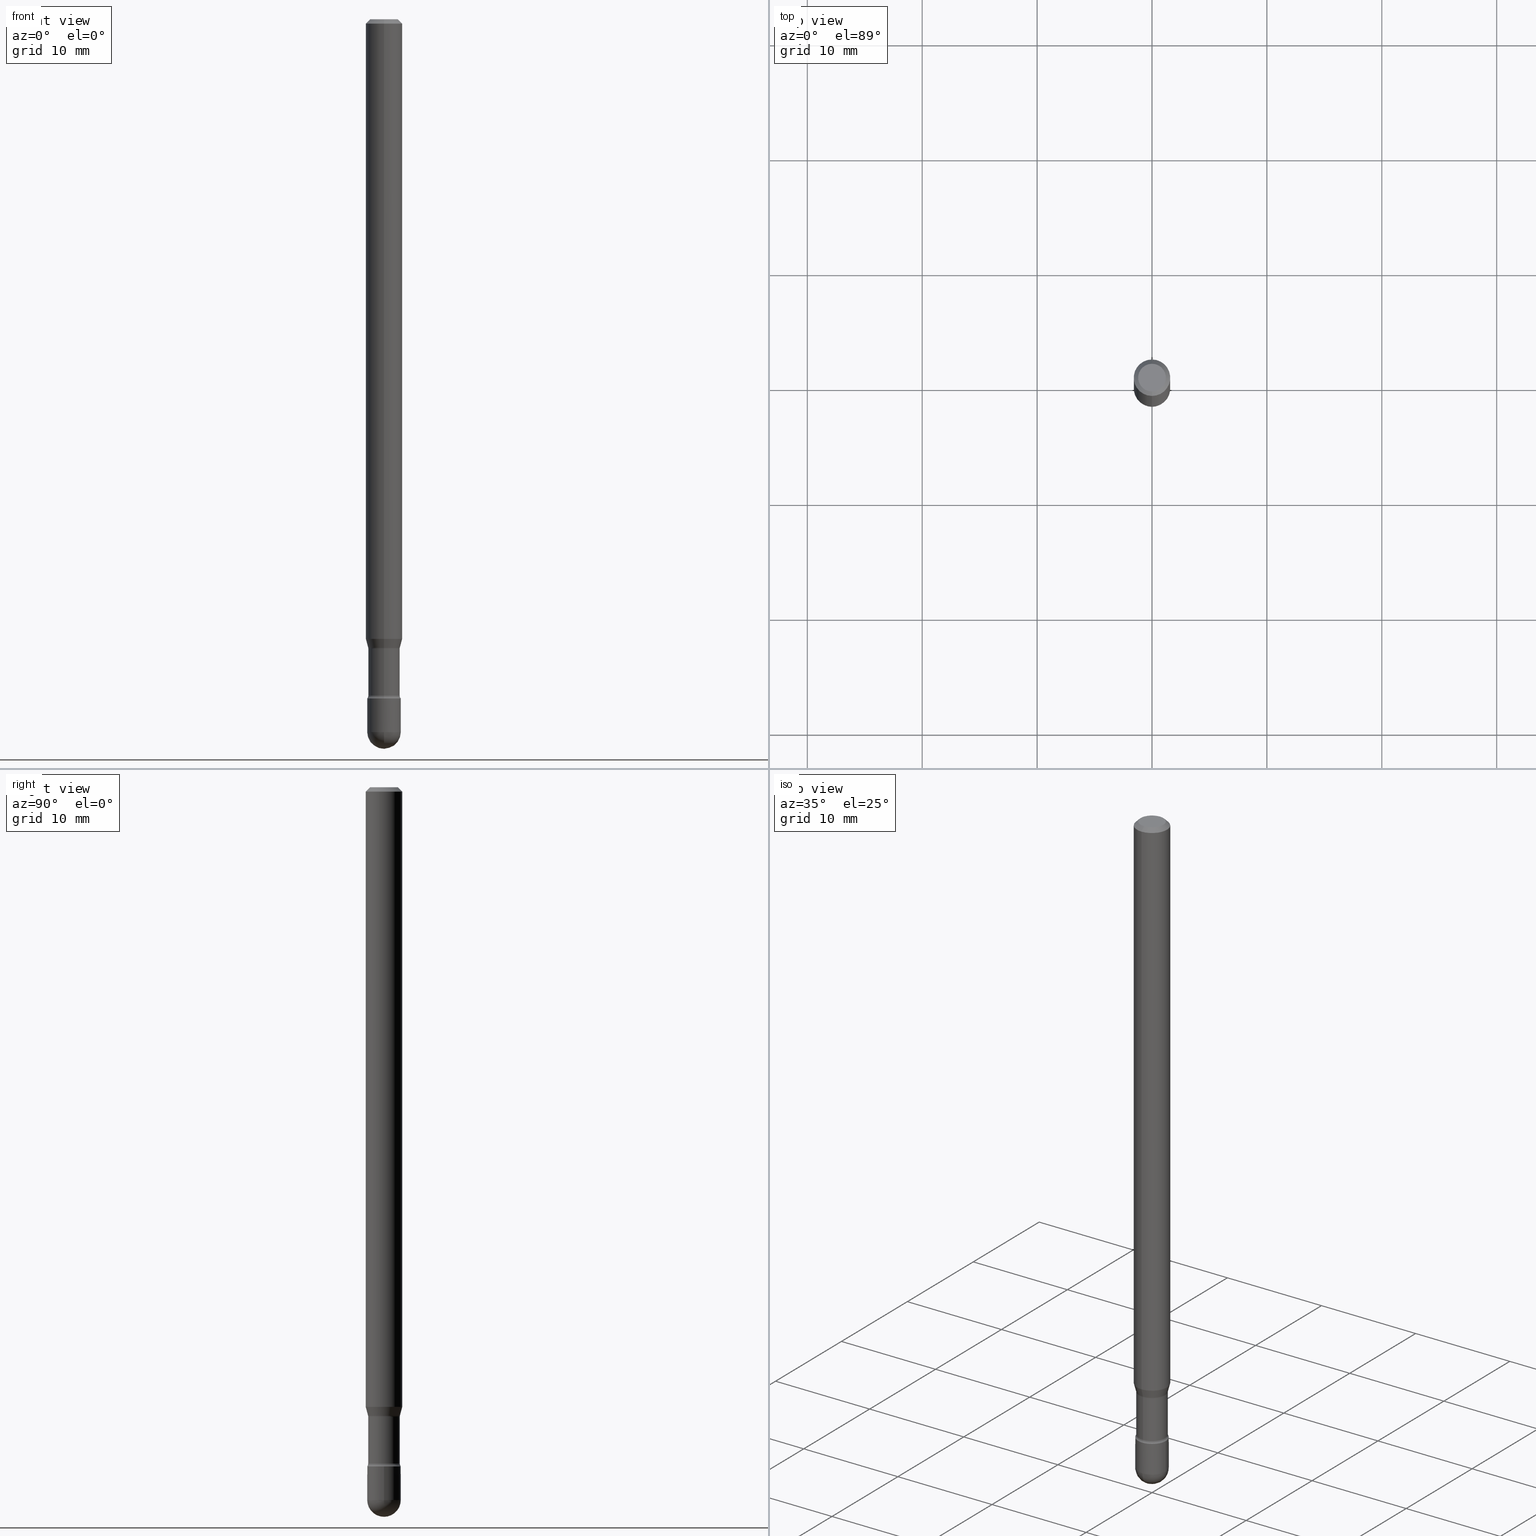
[diagram: canonical four-view strip — front | top / right | iso, engineering-drawing reading convention]
A machine part, canonical four-view strip (front | top / right | iso — engineering-drawing reading convention). The complete STEP part file that produces these views, byte-faithful:
ISO-10303-21;
HEADER;
FILE_DESCRIPTION (( 'STEP AP203' ),
    '1' );
FILE_NAME ('03830.STEP',
    '2024-04-09T20:38:59',
    ( '' ),
    ( '' ),
    'SwSTEP 2.0',
    'SolidWorks 2023',
    '' );
FILE_SCHEMA (( 'CONFIG_CONTROL_DESIGN' ));
ENDSEC;

DATA;
#1 = DIRECTION ( 'NONE',  ( 6.982962677686266711E-15, 1.000000000000000000, -4.751039988981321814E-15 ) ) ;
#2 = VECTOR ( 'NONE', #91, 39.37007874015748143 ) ;
#3 = AXIS2_PLACEMENT_3D ( 'NONE', #138, #174, #402 ) ;
#4 = DIRECTION ( 'NONE',  ( 1.000000000000000000, -6.982962677686265922E-15, 4.876176775795935232E-29 ) ) ;
#5 = PERSON_AND_ORGANIZATION_ROLE ( 'design_supplier' ) ;
#6 = DIRECTION ( 'NONE',  ( -2.445502052278605655E-29, 3.491433728545047957E-15, 1.000000000000000000 ) ) ;
#7 = CALENDAR_DATE ( 2024, 9, 4 ) ;
#8 = PLANE ( 'NONE',  #417 ) ;
#9 = ORIENTED_EDGE ( 'NONE', *, *, #85, .T. ) ;
#10 = CIRCLE ( 'NONE', #145, 0.01500000000000001853 ) ;
#11 = APPROVAL_PERSON_ORGANIZATION ( #513, #296, #481 ) ;
#12 = DIRECTION ( 'NONE',  ( -6.982962677686266711E-15, -1.000000000000000000, 3.491433728545047957E-15 ) ) ;
#13 = CARTESIAN_POINT ( 'NONE',  ( 5.973057559107196227E-29, -8.527943170124383355E-15, -2.442499999999999893 ) ) ;
#14 = EDGE_CURVE ( 'NONE', #207, #251, #558, .T. ) ;
#15 = CARTESIAN_POINT ( 'NONE',  ( 0.05750000000000000250, -8.727830476773152219E-15, -2.442499999999999893 ) ) ;
#16 = CARTESIAN_POINT ( 'NONE',  ( 4.440892098500625669E-16, 0.06250000000000000000, 2.598587908571805659E-16 ) ) ;
#17 =( GEOMETRIC_REPRESENTATION_CONTEXT ( 3 ) GLOBAL_UNCERTAINTY_ASSIGNED_CONTEXT ( ( #28 ) ) GLOBAL_UNIT_ASSIGNED_CONTEXT ( ( #441, #361, #472 ) ) REPRESENTATION_CONTEXT ( 'NONE', 'WORKASPACE' ) );
#18 = VERTEX_POINT ( 'NONE', #380 ) ;
#19 = FACE_OUTER_BOUND ( 'NONE', #116, .T. ) ;
#20 = CARTESIAN_POINT ( 'NONE',  ( -3.809982129783366121E-16, -0.05456111260567150789, -2.153092501787273072 ) ) ;
#21 = VERTEX_POINT ( 'NONE', #203 ) ;
#22 = ORIENTED_EDGE ( 'NONE', *, *, #422, .T. ) ;
#23 = CARTESIAN_POINT ( 'NONE',  ( -4.821735728941838856E-16, -0.06905000000000753591, -2.156974787463810994 ) ) ;
#24 = CIRCLE ( 'NONE', #411, 0.05750000000000000250 ) ;
#25 = VERTEX_POINT ( 'NONE', #206 ) ;
#26 = AXIS2_PLACEMENT_3D ( 'NONE', #353, #435, #544 ) ;
#27 = ORIENTED_EDGE ( 'NONE', *, *, #14, .T. ) ;
#28 = UNCERTAINTY_MEASURE_WITH_UNIT (LENGTH_MEASURE( 1.000000000000000082E-05 ), #441, 'distance_accuracy_value', 'NONE');
#29 = DIRECTION ( 'NONE',  ( -2.445468806185136597E-29, 3.491481338843145583E-15, 1.000000000000000000 ) ) ;
#30 = ORIENTED_EDGE ( 'NONE', *, *, #50, .T. ) ;
#31 = EDGE_CURVE ( 'NONE', #40, #555, #309, .T. ) ;
#32 = ORIENTED_EDGE ( 'NONE', *, *, #461, .T. ) ;
#33 = CARTESIAN_POINT ( 'NONE',  ( -4.287811248607203282E-16, -0.06250000000000005551, -0.01499999999999986587 ) ) ;
#34 = ORIENTED_EDGE ( 'NONE', *, *, #408, .F. ) ;
#35 = EDGE_CURVE ( 'NONE', #161, #460, #319, .T. ) ;
#36 = DIRECTION ( 'NONE',  ( -6.982962677686265922E-15, -1.000000000000000000, 3.491433728545048351E-15 ) ) ;
#37 = EDGE_LOOP ( 'NONE', ( #340, #245, #394, #109 ) ) ;
#38 = PERSON_AND_ORGANIZATION_ROLE ( 'design_owner' ) ;
#39 = CARTESIAN_POINT ( 'NONE',  ( 5.973057559107196227E-29, -8.527943170124383355E-15, -2.442499999999999893 ) ) ;
#40 = VERTEX_POINT ( 'NONE', #473 ) ;
#41 = ADVANCED_FACE ( 'NONE', ( #505 ), #114, .T. ) ;
#42 = SPHERICAL_SURFACE ( 'NONE', #376, 0.05750000000000007189 ) ;
#43 = COORDINATED_UNIVERSAL_TIME_OFFSET ( 5, 0, .BEHIND. ) ;
#44 = CYLINDRICAL_SURFACE ( 'NONE', #79, 0.05750000000000000250 ) ;
#45 = AXIS2_PLACEMENT_3D ( 'NONE', #144, #59, #536 ) ;
#46 = MECHANICAL_CONTEXT ( 'NONE', #533, 'mechanical' ) ;
#47 = DIRECTION ( 'NONE',  ( -6.982962677686265922E-15, -1.000000000000000000, 3.491433728545047563E-15 ) ) ;
#48 = CALENDAR_DATE ( 2024, 9, 4 ) ;
#49 = DIRECTION ( 'NONE',  ( -1.000000000000000000, 6.982962677686266711E-15, -4.883557194083112901E-29 ) ) ;
#50 = EDGE_CURVE ( 'NONE', #540, #460, #166, .T. ) ;
#51 = DIRECTION ( 'NONE',  ( 1.000000000000000000, -6.982962677686273810E-15, 0.000000000000000000 ) ) ;
#52 = CIRCLE ( 'NONE', #508, 0.05750000000000000250 ) ;
#53 = AXIS2_PLACEMENT_3D ( 'NONE', #261, #265, #47 ) ;
#54 = AXIS2_PLACEMENT_3D ( 'NONE', #209, #350, #300 ) ;
#55 = DIRECTION ( 'NONE',  ( -6.982962677686265922E-15, -1.000000000000000000, 5.006950670908185304E-15 ) ) ;
#56 = DIMENSIONAL_EXPONENTS ( 1.000000000000000000, 0.000000000000000000, 0.000000000000000000, 0.000000000000000000, 0.000000000000000000, 0.000000000000000000, 0.000000000000000000 ) ;
#57 = CARTESIAN_POINT ( 'NONE',  ( -3.773273898774340269E-16, -0.04749999999999999362, 8.309380854518480373E-17 ) ) ;
#58 = CC_DESIGN_PERSON_AND_ORGANIZATION_ASSIGNMENT ( #263, #351, ( #550 ) ) ;
#59 = DIRECTION ( 'NONE',  ( -2.445502052278605655E-29, 3.491433728545047957E-15, 1.000000000000000000 ) ) ;
#60 = AXIS2_PLACEMENT_3D ( 'NONE', #236, #370, #101 ) ;
#61 = ORIENTED_EDGE ( 'NONE', *, *, #102, .F. ) ;
#62 = FACE_OUTER_BOUND ( 'NONE', #197, .T. ) ;
#63 = ORIENTED_EDGE ( 'NONE', *, *, #218, .F. ) ;
#64 = CARTESIAN_POINT ( 'NONE',  ( 3.668253078417928609E-31, -5.237150592817601025E-17, -0.01500000000000008271 ) ) ;
#65 = DIRECTION ( 'NONE',  ( -6.982962677686262766E-15, -1.000000000000000000, 0.000000000000000000 ) ) ;
#66 = EDGE_CURVE ( 'NONE', #18, #25, #389, .T. ) ;
#67 = DIRECTION ( 'NONE',  ( -2.445502052278605655E-29, 3.491433728545047957E-15, 1.000000000000000000 ) ) ;
#68 = VECTOR ( 'NONE', #455, 39.37007874015748143 ) ;
#69 = LOCAL_TIME ( 16, 38, 59.00000000000000000, #301 ) ;
#70 = EDGE_LOOP ( 'NONE', ( #498, #480, #424, #365 ) ) ;
#71 = EDGE_LOOP ( 'NONE', ( #123, #214, #193, #512, #529 ) ) ;
#72 = ORIENTED_EDGE ( 'NONE', *, *, #356, .F. ) ;
#73 = ORIENTED_EDGE ( 'NONE', *, *, #90, .F. ) ;
#74 = DIRECTION ( 'NONE',  ( -6.982962677686266711E-15, -1.000000000000000000, 3.491433728545047957E-15 ) ) ;
#75 = CARTESIAN_POINT ( 'NONE',  ( 5.690683275652314673E-29, -8.124566286324327144E-15, -2.326999999999999957 ) ) ;
#76 = ORIENTED_EDGE ( 'NONE', *, *, #173, .T. ) ;
#77 = COORDINATED_UNIVERSAL_TIME_OFFSET ( 5, 0, .BEHIND. ) ;
#78 = CARTESIAN_POINT ( 'NONE',  ( 0.000000000000000000, 0.000000000000000000, 0.000000000000000000 ) ) ;
#79 = AXIS2_PLACEMENT_3D ( 'NONE', #317, #360, #4 ) ;
#80 = APPROVAL_DATE_TIME ( #84, #296 ) ;
#81 = DIRECTION ( 'NONE',  ( -2.445468806185136597E-29, 3.491481338843145583E-15, 1.000000000000000000 ) ) ;
#82 = DIRECTION ( 'NONE',  ( -2.445502052278605935E-29, 3.491433728545047957E-15, 1.000000000000000000 ) ) ;
#83 = CC_DESIGN_PERSON_AND_ORGANIZATION_ASSIGNMENT ( #522, #38, ( #329 ) ) ;
#84 = DATE_AND_TIME ( #7, #97 ) ;
#85 = EDGE_CURVE ( 'NONE', #331, #18, #183, .T. ) ;
#86 = CARTESIAN_POINT ( 'NONE',  ( 4.015203539670203189E-16, 0.05749999999999150929, -2.442500000000000338 ) ) ;
#87 = CONICAL_SURFACE ( 'NONE', #128, 0.06250000000000000000, 0.7853981633974483900 ) ;
#88 = PRODUCT_DEFINITION_FORMATION_WITH_SPECIFIED_SOURCE ( 'ANY', '', #329, .NOT_KNOWN. ) ;
#89 = APPROVAL_ROLE ( '' ) ;
#90 = EDGE_CURVE ( 'NONE', #331, #561, #527, .T. ) ;
#91 = DIRECTION ( 'NONE',  ( -2.445502052278605935E-29, 3.491433728545047957E-15, 1.000000000000000000 ) ) ;
#92 = ORIENTED_EDGE ( 'NONE', *, *, #66, .T. ) ;
#93 = DATE_AND_TIME ( #369, #69 ) ;
#94 = CARTESIAN_POINT ( 'NONE',  ( 3.668253078417928609E-31, -5.237150592817601025E-17, -0.01500000000000008271 ) ) ;
#95 = DIRECTION ( 'NONE',  ( 1.000000000000000000, -6.982962677686265922E-15, 4.883557194083112340E-29 ) ) ;
#96 = CIRCLE ( 'NONE', #175, 0.06250000000000000000 ) ;
#97 = LOCAL_TIME ( 16, 38, 59.00000000000000000, #77 ) ;
#98 = CIRCLE ( 'NONE', #430, 0.05456111260566398613 ) ;
#99 = DIRECTION ( 'NONE',  ( -2.445502052278605655E-29, 3.491433728545047957E-15, 1.000000000000000000 ) ) ;
#100 = DIRECTION ( 'NONE',  ( -2.445468806185136597E-29, 3.491481338843145583E-15, 1.000000000000000000 ) ) ;
#101 = DIRECTION ( 'NONE',  ( -6.982962677686265922E-15, -1.000000000000000000, 3.491433728545049140E-15 ) ) ;
#102 = EDGE_CURVE ( 'NONE', #561, #25, #231, .T. ) ;
#103 = ORIENTED_EDGE ( 'NONE', *, *, #336, .F. ) ;
#104 = AXIS2_PLACEMENT_3D ( 'NONE', #467, #106, #345 ) ;
#105 = CC_DESIGN_SECURITY_CLASSIFICATION ( #510, ( #88 ) ) ;
#106 = DIRECTION ( 'NONE',  ( 2.445502052278605655E-29, -3.491433728545047957E-15, -1.000000000000000000 ) ) ;
#107 = AXIS2_PLACEMENT_3D ( 'NONE', #78, #297, #119 ) ;
#108 = EDGE_CURVE ( 'NONE', #425, #432, #307, .T. ) ;
#109 = ORIENTED_EDGE ( 'NONE', *, *, #195, .F. ) ;
#110 = DIRECTION ( 'NONE',  ( 1.000000000000000000, -7.105427357601001070E-15, 4.926314925484090467E-29 ) ) ;
#111 = DIRECTION ( 'NONE',  ( 4.937700262164548042E-15, 0.7071067811865451302, -0.7071067811865499042 ) ) ;
#112 = ORIENTED_EDGE ( 'NONE', *, *, #316, .T. ) ;
#113 = CARTESIAN_POINT ( 'NONE',  ( 2.023794613002133501E-45, -2.888909133340869804E-31, -8.274929356070495451E-17 ) ) ;
#114 = CYLINDRICAL_SURFACE ( 'NONE', #107, 0.05750000000000000250 ) ;
#115 = ADVANCED_BREP_SHAPE_REPRESENTATION ( '03830', ( #519, #142, #238 ), #17 ) ;
#116 = EDGE_LOOP ( 'NONE', ( #291, #566 ) ) ;
#117 = CYLINDRICAL_SURFACE ( 'NONE', #474, 0.05405000000000002858 ) ;
#118 = VECTOR ( 'NONE', #341, 39.37007874015748143 ) ;
#119 = DIRECTION ( 'NONE',  ( 1.000000000000000000, -6.982962677686265922E-15, 4.876176775795935232E-29 ) ) ;
#120 = EDGE_LOOP ( 'NONE', ( #244, #347, #465, #463 ) ) ;
#121 = CARTESIAN_POINT ( 'NONE',  ( 5.667201165703240905E-29, -8.091261300686981315E-15, -2.317429341715430802 ) ) ;
#122 = DIRECTION ( 'NONE',  ( -6.982962677686266711E-15, -1.000000000000000000, 5.054297860618428788E-15 ) ) ;
#123 = ORIENTED_EDGE ( 'NONE', *, *, #419, .F. ) ;
#124 = SECURITY_CLASSIFICATION_LEVEL ( 'unclassified' ) ;
#125 = EDGE_LOOP ( 'NONE', ( #507, #61 ) ) ;
#126 = CALENDAR_DATE ( 2024, 9, 4 ) ;
#127 = CC_DESIGN_DATE_AND_TIME_ASSIGNMENT ( #226, #564, ( #510 ) ) ;
#128 = AXIS2_PLACEMENT_3D ( 'NONE', #94, #454, #191 ) ;
#129 = APPROVAL_PERSON_ORGANIZATION ( #354, #200, #407 ) ;
#130 = AXIS2_PLACEMENT_3D ( 'NONE', #141, #452, #275 ) ;
#131 = ADVANCED_FACE ( 'NONE', ( #308 ), #393, .T. ) ;
#132 = DIRECTION ( 'NONE',  ( 0.000000000000000000, 0.000000000000000000, 1.000000000000000000 ) ) ;
#133 = DIRECTION ( 'NONE',  ( 1.000000000000000000, -6.982962677686273810E-15, 0.000000000000000000 ) ) ;
#134 = ADVANCED_FACE ( 'NONE', ( #362 ), #482, .T. ) ;
#135 = DATE_TIME_ROLE ( 'creation_date' ) ;
#136 = CARTESIAN_POINT ( 'NONE',  ( -3.774291327289428766E-16, -0.05405000000000002858, 6.667853919191060763E-16 ) ) ;
#137 = APPROVAL_STATUS ( 'not_yet_approved' ) ;
#138 = CARTESIAN_POINT ( 'NONE',  ( 5.274886269455959517E-29, -7.530934524572436065E-15, -2.156974787463810994 ) ) ;
#139 = DIRECTION ( 'NONE',  ( -2.445502052278605094E-29, 3.491433728545047957E-15, 1.000000000000000000 ) ) ;
#140 = EDGE_LOOP ( 'NONE', ( #427, #76, #32, #250 ) ) ;
#141 = CARTESIAN_POINT ( 'NONE',  ( -1.169113584055446105E-44, 1.669184350826100908E-30, 4.780733988912460139E-16 ) ) ;
#142 = MANIFOLD_SOLID_BREP ( 'Body-Move/Copy2[2]', #277 ) ;
#143 = ORIENTED_EDGE ( 'NONE', *, *, #218, .T. ) ;
#144 = CARTESIAN_POINT ( 'NONE',  ( 5.265392131866453070E-29, -7.517379781417525390E-15, -2.153092501787273072 ) ) ;
#145 = AXIS2_PLACEMENT_3D ( 'NONE', #286, #110, #249 ) ;
#146 = ORIENTED_EDGE ( 'NONE', *, *, #173, .F. ) ;
#147 = LOCAL_TIME ( 16, 38, 59.00000000000000000, #215 ) ;
#148 = AXIS2_PLACEMENT_3D ( 'NONE', #179, #259, #257 ) ;
#149 = DIRECTION ( 'NONE',  ( -6.982962677686265922E-15, -1.000000000000000000, 4.370956789862821150E-15 ) ) ;
#150 = DIRECTION ( 'NONE',  ( 6.982962677686265922E-15, 1.000000000000000000, -3.491433728545047957E-15 ) ) ;
#151 = ORIENTED_EDGE ( 'NONE', *, *, #448, .T. ) ;
#152 = DIRECTION ( 'NONE',  ( -6.982962677686265922E-15, -1.000000000000000000, 3.491433728545048351E-15 ) ) ;
#153 = EDGE_LOOP ( 'NONE', ( #146, #22, #429, #471 ) ) ;
#154 = DIRECTION ( 'NONE',  ( -2.445502052278605655E-29, 3.491433728545047957E-15, 1.000000000000000000 ) ) ;
#155 = EDGE_CURVE ( 'NONE', #469, #406, #359, .T. ) ;
#156 = EDGE_LOOP ( 'NONE', ( #553, #344, #298, #386 ) ) ;
#157 = ORIENTED_EDGE ( 'NONE', *, *, #50, .F. ) ;
#158 = CARTESIAN_POINT ( 'NONE',  ( 5.690605911992812897E-29, -8.124677075487999464E-15, -2.326999999999999957 ) ) ;
#159 = DIRECTION ( 'NONE',  ( -2.445502052278605655E-29, 3.491433728545047957E-15, 1.000000000000000000 ) ) ;
#160 = CARTESIAN_POINT ( 'NONE',  ( 6.116130618544232584E-29, -8.725182487560315771E-15, -2.500000000000000000 ) ) ;
#161 = VERTEX_POINT ( 'NONE', #227 ) ;
#162 = VERTEX_POINT ( 'NONE', #523 ) ;
#163 = FACE_OUTER_BOUND ( 'NONE', #213, .T. ) ;
#164 = AXIS2_PLACEMENT_3D ( 'NONE', #368, #279, #186 ) ;
#165 = AXIS2_PLACEMENT_3D ( 'NONE', #252, #494, #205 ) ;
#166 = LINE ( 'NONE', #382, #258 ) ;
#167 = CLOSED_SHELL ( 'NONE', ( #192, #131, #538, #268, #41 ) ) ;
#168 = CARTESIAN_POINT ( 'NONE',  ( -4.364351673553395060E-16, -0.06250000000000739686, -2.123464170676042873 ) ) ;
#169 = ORIENTED_EDGE ( 'NONE', *, *, #338, .F. ) ;
#170 = ORIENTED_EDGE ( 'NONE', *, *, #451, .F. ) ;
#171 =( LENGTH_UNIT ( ) NAMED_UNIT ( * ) SI_UNIT ( $, .METRE. ) );
#172 = DIRECTION ( 'NONE',  ( -2.445502052278605655E-29, 3.491433728545047957E-15, 1.000000000000000000 ) ) ;
#173 = EDGE_CURVE ( 'NONE', #406, #469, #98, .T. ) ;
#174 = DIRECTION ( 'NONE',  ( -2.445502052278605655E-29, 3.491433728545047957E-15, 1.000000000000000000 ) ) ;
#175 = AXIS2_PLACEMENT_3D ( 'NONE', #64, #504, #208 ) ;
#176 = DIRECTION ( 'NONE',  ( -6.982962677686266711E-15, -1.000000000000000000, 5.054297860618428788E-15 ) ) ;
#177 = EDGE_LOOP ( 'NONE', ( #385, #439, #303, #63 ) ) ;
#178 = PERSON_AND_ORGANIZATION ( #352, #222 ) ;
#179 = CARTESIAN_POINT ( 'NONE',  ( 5.973057559107196227E-29, -8.527943170124383355E-15, -2.442499999999999893 ) ) ;
#180 = EDGE_CURVE ( 'NONE', #403, #21, #401, .T. ) ;
#181 = CARTESIAN_POINT ( 'NONE',  ( 4.015203539670172127E-16, 0.05749999999999187705, -2.327000000000000401 ) ) ;
#182 = CIRCLE ( 'NONE', #363, 0.05405000000000000082 ) ;
#183 = CIRCLE ( 'NONE', #457, 0.05405000000000004939 ) ;
#184 = FACE_OUTER_BOUND ( 'NONE', #140, .T. ) ;
#185 = EDGE_CURVE ( 'NONE', #18, #331, #466, .T. ) ;
#186 = DIRECTION ( 'NONE',  ( -6.982962677686265922E-15, -1.000000000000000000, 3.491433728545048351E-15 ) ) ;
#187 = CC_DESIGN_PERSON_AND_ORGANIZATION_ASSIGNMENT ( #224, #484, ( #88 ) ) ;
#188 = DIRECTION ( 'NONE',  ( -2.445468806185136597E-29, 3.491481338843145583E-15, 1.000000000000000000 ) ) ;
#189 = TOROIDAL_SURFACE ( 'NONE', #164, 0.06905000000000000027, 0.01500000000000001853 ) ;
#190 = LOCAL_TIME ( 16, 38, 59.00000000000000000, #43 ) ;
#191 = DIRECTION ( 'NONE',  ( 6.982962677686265922E-15, 1.000000000000000000, -3.483106191921935554E-15 ) ) ;
#192 = ADVANCED_FACE ( 'NONE', ( #516 ), #44, .T. ) ;
#193 = ORIENTED_EDGE ( 'NONE', *, *, #254, .T. ) ;
#194 = CARTESIAN_POINT ( 'NONE',  ( 5.274814558470564717E-29, -7.531037218785056295E-15, -2.156974787463810994 ) ) ;
#195 = EDGE_CURVE ( 'NONE', #555, #161, #485, .T. ) ;
#196 = LINE ( 'NONE', #33, #118 ) ;
#197 = EDGE_LOOP ( 'NONE', ( #103, #9, #143, #34 ) ) ;
#198 = ORIENTED_EDGE ( 'NONE', *, *, #254, .F. ) ;
#199 = AXIS2_PLACEMENT_3D ( 'NONE', #479, #172, #176 ) ;
#200 = APPROVAL ( #475, 'UNSPECIFIED' ) ;
#201 = DIRECTION ( 'NONE',  ( -6.982962677686265922E-15, -1.000000000000000000, 5.054297860618433521E-15 ) ) ;
#202 = AXIS2_PLACEMENT_3D ( 'NONE', #373, #99, #55 ) ;
#203 = CARTESIAN_POINT ( 'NONE',  ( -4.085620730619980656E-16, -0.05750000000000856509, -2.442499999999999893 ) ) ;
#204 = ORIENTED_EDGE ( 'NONE', *, *, #270, .T. ) ;
#205 = DIRECTION ( 'NONE',  ( 1.000000000000000000, -6.982962677686265922E-15, 4.876176775795935793E-29 ) ) ;
#206 = CARTESIAN_POINT ( 'NONE',  ( -4.015203539669032716E-16, -0.05750000000000811406, -2.326999999999999957 ) ) ;
#207 = VERTEX_POINT ( 'NONE', #86 ) ;
#208 = DIRECTION ( 'NONE',  ( -6.982962677686265922E-15, -1.000000000000000000, 3.483106191921935554E-15 ) ) ;
#209 = CARTESIAN_POINT ( 'NONE',  ( 4.906297590424058796E-16, 0.06904999999999192339, -2.317429341715430802 ) ) ;
#210 = EDGE_CURVE ( 'NONE', #304, #241, #528, .T. ) ;
#211 = CARTESIAN_POINT ( 'NONE',  ( 4.440892098501148782E-16, 0.06249999999999995143, -0.01500000000000030129 ) ) ;
#212 = TOROIDAL_SURFACE ( 'NONE', #497, 0.06905000000000001414, 0.01499999999999996822 ) ;
#213 = EDGE_LOOP ( 'NONE', ( #73, #410, #92, #383 ) ) ;
#214 = ORIENTED_EDGE ( 'NONE', *, *, #338, .T. ) ;
#215 = COORDINATED_UNIVERSAL_TIME_OFFSET ( 5, 0, .BEHIND. ) ;
#216 = FACE_OUTER_BOUND ( 'NONE', #421, .T. ) ;
#217 = CARTESIAN_POINT ( 'NONE',  ( 0.000000000000000000, 0.000000000000000000, 0.000000000000000000 ) ) ;
#218 = EDGE_CURVE ( 'NONE', #18, #425, #525, .T. ) ;
#219 = CARTESIAN_POINT ( 'NONE',  ( 5.973057559107196227E-29, -8.527943170124383355E-15, -2.442499999999999893 ) ) ;
#220 = DATE_AND_TIME ( #392, #190 ) ;
#221 = DIRECTION ( 'NONE',  ( -6.982962677686265922E-15, -1.000000000000000000, 5.006950670908185304E-15 ) ) ;
#222 = ORGANIZATION ( 'UNSPECIFIED', 'UNSPECIFIED', '' ) ;
#223 = CC_DESIGN_DATE_AND_TIME_ASSIGNMENT ( #220, #135, ( #550 ) ) ;
#224 = PERSON_AND_ORGANIZATION ( #352, #222 ) ;
#225 = CARTESIAN_POINT ( 'NONE',  ( 5.973057559107196227E-29, -8.527943170124383355E-15, -2.442499999999999893 ) ) ;
#226 = DATE_AND_TIME ( #48, #535 ) ;
#227 = CARTESIAN_POINT ( 'NONE',  ( -4.364351673553912750E-16, -0.06250000000000005551, -0.01499999999999986587 ) ) ;
#228 = CARTESIAN_POINT ( 'NONE',  ( 5.973057559107196227E-29, -8.527943170124383355E-15, -2.442499999999999893 ) ) ;
#229 = AXIS2_PLACEMENT_3D ( 'NONE', #158, #29, #423 ) ;
#230 = ORIENTED_EDGE ( 'NONE', *, *, #316, .F. ) ;
#231 = CIRCLE ( 'NONE', #546, 0.05750000000000000250 ) ;
#232 = LINE ( 'NONE', #534, #520 ) ;
#233 = ORIENTED_EDGE ( 'NONE', *, *, #180, .F. ) ;
#234 = APPROVAL_DATE_TIME ( #93, #200 ) ;
#235 = APPLICATION_CONTEXT ( 'configuration controlled 3d designs of mechanical parts and assemblies' ) ;
#236 = CARTESIAN_POINT ( 'NONE',  ( -1.169113584055446105E-44, 1.669184350826100908E-30, 4.780733988912460139E-16 ) ) ;
#237 = CIRCLE ( 'NONE', #276, 0.05750000000000000250 ) ;
#238 = AXIS2_PLACEMENT_3D ( 'NONE', #217, #132, #396 ) ;
#239 = DIRECTION ( 'NONE',  ( 1.000000000000000000, -6.982962677686273810E-15, 0.000000000000000000 ) ) ;
#240 = EDGE_LOOP ( 'NONE', ( #560, #335, #271, #552 ) ) ;
#241 = VERTEX_POINT ( 'NONE', #438 ) ;
#242 = DIRECTION ( 'NONE',  ( -6.982962677686265922E-15, -1.000000000000000000, 3.491433728545049140E-15 ) ) ;
#243 = ORIENTED_EDGE ( 'NONE', *, *, #270, .F. ) ;
#244 = ORIENTED_EDGE ( 'NONE', *, *, #155, .T. ) ;
#245 = ORIENTED_EDGE ( 'NONE', *, *, #282, .T. ) ;
#246 = AXIS2_PLACEMENT_3D ( 'NONE', #325, #487, #149 ) ;
#247 = CARTESIAN_POINT ( 'NONE',  ( 5.274886269455959517E-29, -7.530934524572436065E-15, -2.156974787463810994 ) ) ;
#248 = DIRECTION ( 'NONE',  ( -6.982962677686265922E-15, -1.000000000000000000, 3.483106191921935554E-15 ) ) ;
#249 = DIRECTION ( 'NONE',  ( 7.105427357600998703E-15, 1.000000000000000000, 0.000000000000000000 ) ) ;
#250 = ORIENTED_EDGE ( 'NONE', *, *, #31, .F. ) ;
#251 = VERTEX_POINT ( 'NONE', #269 ) ;
#252 = CARTESIAN_POINT ( 'NONE',  ( 5.690605911992812897E-29, -8.124677075487999464E-15, -2.326999999999999957 ) ) ;
#253 = ORIENTED_EDGE ( 'NONE', *, *, #35, .T. ) ;
#254 = EDGE_CURVE ( 'NONE', #21, #304, #52, .T. ) ;
#255 = VECTOR ( 'NONE', #551, 39.37007874015748143 ) ;
#256 = AXIS2_PLACEMENT_3D ( 'NONE', #433, #559, #554 ) ;
#257 = DIRECTION ( 'NONE',  ( -7.105427357601000281E-15, -1.000000000000000000, 0.000000000000000000 ) ) ;
#258 = VECTOR ( 'NONE', #111, 39.37007874015748143 ) ;
#259 = DIRECTION ( 'NONE',  ( -1.000000000000000000, 7.105427357601001070E-15, -4.926315508542082329E-29 ) ) ;
#260 = DATE_AND_TIME ( #126, #147 ) ;
#261 = CARTESIAN_POINT ( 'NONE',  ( -1.169113584055446105E-44, 1.669184350826100908E-30, 4.780733988912460139E-16 ) ) ;
#262 = APPROVAL ( #137, 'UNSPECIFIED' ) ;
#263 = PERSON_AND_ORGANIZATION ( #352, #222 ) ;
#264 = ADVANCED_FACE ( 'NONE', ( #355 ), #8, .F. ) ;
#265 = DIRECTION ( 'NONE',  ( -2.445502052278605655E-29, 3.491433728545047957E-15, 1.000000000000000000 ) ) ;
#266 = AXIS2_PLACEMENT_3D ( 'NONE', #194, #333, #152 ) ;
#267 = PERSON_AND_ORGANIZATION_ROLE ( 'classification_officer' ) ;
#268 = ADVANCED_FACE ( 'NONE', ( #216 ), #42, .T. ) ;
#269 = CARTESIAN_POINT ( 'NONE',  ( -0.05750000000000000250, -7.917748049744133834E-15, -2.442499999999999893 ) ) ;
#270 = EDGE_CURVE ( 'NONE', #241, #162, #444, .T. ) ;
#271 = ORIENTED_EDGE ( 'NONE', *, *, #195, .T. ) ;
#272 = CARTESIAN_POINT ( 'NONE',  ( 5.690683275652314673E-29, -8.124566286324327144E-15, -2.326999999999999957 ) ) ;
#273 = ADVANCED_FACE ( 'NONE', ( #184 ), #326, .T. ) ;
#274 = VERTEX_POINT ( 'NONE', #57 ) ;
#275 = DIRECTION ( 'NONE',  ( -6.982962677686265922E-15, -1.000000000000000000, 3.491433728545047563E-15 ) ) ;
#276 = AXIS2_PLACEMENT_3D ( 'NONE', #13, #188, #51 ) ;
#277 = CLOSED_SHELL ( 'NONE', ( #294, #321, #547, #302, #134, #310, #273, #322, #415, #366, #264, #563, #436, #289 ) ) ;
#278 = AXIS2_PLACEMENT_3D ( 'NONE', #493, #412, #12 ) ;
#279 = DIRECTION ( 'NONE',  ( -2.445502052278605655E-29, 3.491433728545047957E-15, 1.000000000000000000 ) ) ;
#280 = CYLINDRICAL_SURFACE ( 'NONE', #60, 0.05405000000000002858 ) ;
#281 = FACE_OUTER_BOUND ( 'NONE', #156, .T. ) ;
#282 = EDGE_CURVE ( 'NONE', #40, #460, #330, .T. ) ;
#283 = ORIENTED_EDGE ( 'NONE', *, *, #515, .F. ) ;
#284 = APPROVAL_PERSON_ORGANIZATION ( #524, #262, #89 ) ;
#285 = DIRECTION ( 'NONE',  ( -2.445502052278605655E-29, 3.491433728545047957E-15, 1.000000000000000000 ) ) ;
#286 = CARTESIAN_POINT ( 'NONE',  ( 4.906297590424019353E-16, 0.06904999999999247851, -2.156974787463811438 ) ) ;
#287 = DIRECTION ( 'NONE',  ( -1.000000000000000000, 6.982962677686265922E-15, -4.883557194083112901E-29 ) ) ;
#288 = CARTESIAN_POINT ( 'NONE',  ( 4.085620730621142747E-16, 0.05749999999999185624, -2.327000000000000401 ) ) ;
#289 = ADVANCED_FACE ( 'NONE', ( #281 ), #334, .F. ) ;
#290 = DIRECTION ( 'NONE',  ( -6.982962677686265922E-15, -1.000000000000000000, 4.370956789862821150E-15 ) ) ;
#291 = ORIENTED_EDGE ( 'NONE', *, *, #451, .T. ) ;
#292 = VECTOR ( 'NONE', #379, 39.37007874015748854 ) ;
#293 = CC_DESIGN_APPROVAL ( #200, ( #510 ) ) ;
#294 = ADVANCED_FACE ( 'NONE', ( #530 ), #189, .F. ) ;
#295 = LINE ( 'NONE', #459, #400 ) ;
#296 = APPROVAL ( #399, 'UNSPECIFIED' ) ;
#297 = DIRECTION ( 'NONE',  ( -2.445468806185136597E-29, 3.491481338843145583E-15, 1.000000000000000000 ) ) ;
#298 = ORIENTED_EDGE ( 'NONE', *, *, #502, .T. ) ;
#299 = DIRECTION ( 'NONE',  ( -2.445502052278605655E-29, 3.491433728545047957E-15, 1.000000000000000000 ) ) ;
#300 = DIRECTION ( 'NONE',  ( 7.105427357600997914E-15, 1.000000000000000000, 0.000000000000000000 ) ) ;
#301 = COORDINATED_UNIVERSAL_TIME_OFFSET ( 5, 0, .BEHIND. ) ;
#302 = ADVANCED_FACE ( 'NONE', ( #414 ), #87, .T. ) ;
#303 = ORIENTED_EDGE ( 'NONE', *, *, #108, .F. ) ;
#304 = VERTEX_POINT ( 'NONE', #15 ) ;
#305 = VECTOR ( 'NONE', #442, 39.37007874015748143 ) ;
#306 = APPROVAL_DATE_TIME ( #260, #262 ) ;
#307 = CIRCLE ( 'NONE', #3, 0.05405000000000000082 ) ;
#308 = FACE_OUTER_BOUND ( 'NONE', #375, .T. ) ;
#309 = CIRCLE ( 'NONE', #499, 0.06250000000000000000 ) ;
#310 = ADVANCED_FACE ( 'NONE', ( #323 ), #483, .T. ) ;
#311 = DIRECTION ( 'NONE',  ( -2.445502052278605655E-29, 3.491433728545047957E-15, 1.000000000000000000 ) ) ;
#312 = APPLICATION_PROTOCOL_DEFINITION ( 'international standard', 'config_control_design', 1994, #235 ) ;
#313 = DIRECTION ( 'NONE',  ( 6.982962677686266711E-15, 1.000000000000000000, -4.751039988981321814E-15 ) ) ;
#314 = CC_DESIGN_PERSON_AND_ORGANIZATION_ASSIGNMENT ( #178, #267, ( #510 ) ) ;
#315 = APPLICATION_PROTOCOL_DEFINITION ( 'international standard', 'config_control_design', 1994, #533 ) ;
#316 = EDGE_CURVE ( 'NONE', #304, #207, #237, .T. ) ;
#317 = CARTESIAN_POINT ( 'NONE',  ( 0.000000000000000000, 0.000000000000000000, 0.000000000000000000 ) ) ;
#318 = CIRCLE ( 'NONE', #229, 0.05750000000000000250 ) ;
#319 = CIRCLE ( 'NONE', #476, 0.06250000000000000000 ) ;
#320 = DIRECTION ( 'NONE',  ( -6.982962677686265922E-15, -1.000000000000000000, 3.491433728545047957E-15 ) ) ;
#321 = ADVANCED_FACE ( 'NONE', ( #531 ), #280, .T. ) ;
#322 = ADVANCED_FACE ( 'NONE', ( #456 ), #420, .T. ) ;
#323 = FACE_OUTER_BOUND ( 'NONE', #120, .T. ) ;
#324 = EDGE_LOOP ( 'NONE', ( #27, #390, #243, #377, #112 ) ) ;
#325 = CARTESIAN_POINT ( 'NONE',  ( 5.192935987328350802E-29, -7.413934426855275565E-15, -2.123464170676042873 ) ) ;
#326 = CONICAL_SURFACE ( 'NONE', #202, 0.05456111260566398613, 0.2617993877991491303 ) ;
#327 = AXIS2_PLACEMENT_3D ( 'NONE', #225, #49, #313 ) ;
#328 = CARTESIAN_POINT ( 'NONE',  ( 5.973057559107196227E-29, -8.527943170124383355E-15, -2.442499999999999893 ) ) ;
#329 = PRODUCT ( '03830', '03830', '', ( #46 ) ) ;
#330 = LINE ( 'NONE', #16, #68 ) ;
#331 = VERTEX_POINT ( 'NONE', #367 ) ;
#332 = DESIGN_CONTEXT ( 'detailed design', #235, 'design' ) ;
#333 = DIRECTION ( 'NONE',  ( -2.445502052278605655E-29, 3.491433728545047957E-15, 1.000000000000000000 ) ) ;
#334 = TOROIDAL_SURFACE ( 'NONE', #266, 0.06905000000000000027, 0.01500000000000001853 ) ;
#335 = ORIENTED_EDGE ( 'NONE', *, *, #31, .T. ) ;
#336 = EDGE_CURVE ( 'NONE', #331, #432, #232, .T. ) ;
#337 = FACE_OUTER_BOUND ( 'NONE', #443, .T. ) ;
#338 = EDGE_CURVE ( 'NONE', #251, #21, #24, .T. ) ;
#339 = ORIENTED_EDGE ( 'NONE', *, *, #495, .T. ) ;
#340 = ORIENTED_EDGE ( 'NONE', *, *, #343, .T. ) ;
#341 = DIRECTION ( 'NONE',  ( -4.851104656540964275E-15, -0.7071067811865500152, -0.7071067811865450192 ) ) ;
#342 = CARTESIAN_POINT ( 'NONE',  ( 3.668253078417928609E-31, -5.237150592817601025E-17, -0.01500000000000008271 ) ) ;
#343 = EDGE_CURVE ( 'NONE', #555, #40, #556, .T. ) ;
#344 = ORIENTED_EDGE ( 'NONE', *, *, #155, .F. ) ;
#345 = DIRECTION ( 'NONE',  ( 6.982962677686265922E-15, 1.000000000000000000, -3.483106191921935554E-15 ) ) ;
#346 = CARTESIAN_POINT ( 'NONE',  ( -4.821735728941801385E-16, -0.06905000000000811877, -2.317429341715430358 ) ) ;
#347 = ORIENTED_EDGE ( 'NONE', *, *, #542, .T. ) ;
#348 = VECTOR ( 'NONE', #82, 39.37007874015748143 ) ;
#349 = CARTESIAN_POINT ( 'NONE',  ( -3.774291327288899243E-16, -0.05405000000000752952, -2.156974787463810994 ) ) ;
#350 = DIRECTION ( 'NONE',  ( 1.000000000000000000, -7.105427357601001070E-15, 4.926314925484090467E-29 ) ) ;
#351 = PERSON_AND_ORGANIZATION_ROLE ( 'creator' ) ;
#352 = PERSON ( 'UNSPECIFIED', 'UNSPECIFIED', 'UNSPECIFIED', ('UNSPECIFIED'), ('UNSPECIFIED'), ('UNSPECIFIED') ) ;
#353 = CARTESIAN_POINT ( 'NONE',  ( 5.973057559107196227E-29, -8.527943170124383355E-15, -2.442499999999999893 ) ) ;
#354 = PERSON_AND_ORGANIZATION ( #352, #222 ) ;
#355 = FACE_OUTER_BOUND ( 'NONE', #125, .T. ) ;
#356 = EDGE_CURVE ( 'NONE', #403, #207, #398, .T. ) ;
#357 = ORIENTED_EDGE ( 'NONE', *, *, #14, .F. ) ;
#358 = CIRCLE ( 'NONE', #278, 0.04749999999999999362 ) ;
#359 = CIRCLE ( 'NONE', #378, 0.05456111260566398613 ) ;
#360 = DIRECTION ( 'NONE',  ( -2.445468806185136597E-29, 3.491481338843145583E-15, 1.000000000000000000 ) ) ;
#361 =( NAMED_UNIT ( * ) PLANE_ANGLE_UNIT ( ) SI_UNIT ( $, .RADIAN. ) );
#362 = FACE_OUTER_BOUND ( 'NONE', #37, .T. ) ;
#363 = AXIS2_PLACEMENT_3D ( 'NONE', #247, #154, #201 ) ;
#364 = DIRECTION ( 'NONE',  ( -2.445502052278605655E-29, 3.491433728545047957E-15, 1.000000000000000000 ) ) ;
#365 = ORIENTED_EDGE ( 'NONE', *, *, #66, .F. ) ;
#366 = ADVANCED_FACE ( 'NONE', ( #19 ), #372, .F. ) ;
#367 = CARTESIAN_POINT ( 'NONE',  ( 3.963052108702526638E-16, 0.05404999999999195864, -2.317429341715430802 ) ) ;
#368 = CARTESIAN_POINT ( 'NONE',  ( 5.274814558470564717E-29, -7.531037218785056295E-15, -2.156974787463810994 ) ) ;
#369 = CALENDAR_DATE ( 2024, 9, 4 ) ;
#370 = DIRECTION ( 'NONE',  ( -2.445502052278605655E-29, 3.491433728545047957E-15, 1.000000000000000000 ) ) ;
#371 = AXIS2_PLACEMENT_3D ( 'NONE', #23, #500, #511 ) ;
#372 = PLANE ( 'NONE',  #496 ) ;
#373 = CARTESIAN_POINT ( 'NONE',  ( 5.265392131866453070E-29, -7.517379781417525390E-15, -2.153092501787273072 ) ) ;
#374 = CARTESIAN_POINT ( 'NONE',  ( -3.809982129783366121E-16, -0.05456111260567150789, -2.153092501787273072 ) ) ;
#375 = EDGE_LOOP ( 'NONE', ( #72, #503, #169, #357 ) ) ;
#376 = AXIS2_PLACEMENT_3D ( 'NONE', #219, #397, #1 ) ;
#377 = ORIENTED_EDGE ( 'NONE', *, *, #210, .F. ) ;
#378 = AXIS2_PLACEMENT_3D ( 'NONE', #565, #311, #445 ) ;
#379 = DIRECTION ( 'NONE',  ( -1.807323732225322645E-15, -0.2588190451025170757, 0.9659258262890693114 ) ) ;
#380 = CARTESIAN_POINT ( 'NONE',  ( -3.774291327288863745E-16, -0.05405000000000814708, -2.317429341715430358 ) ) ;
#381 = CARTESIAN_POINT ( 'NONE',  ( -0.05750000000000000250, 4.085620730620576246E-16, -2.828387676896570712E-30 ) ) ;
#382 = CARTESIAN_POINT ( 'NONE',  ( 4.364351673553919652E-16, 0.06249999999999995143, -0.01500000000000030129 ) ) ;
#383 = ORIENTED_EDGE ( 'NONE', *, *, #391, .T. ) ;
#384 = FACE_OUTER_BOUND ( 'NONE', #70, .T. ) ;
#385 = ORIENTED_EDGE ( 'NONE', *, *, #185, .T. ) ;
#386 = ORIENTED_EDGE ( 'NONE', *, *, #108, .T. ) ;
#387 = AXIS2_PLACEMENT_3D ( 'NONE', #272, #489, #449 ) ;
#388 = CARTESIAN_POINT ( 'NONE',  ( 3.840629472727447874E-16, 0.04749999999999999362, -2.485923956665947374E-16 ) ) ;
#389 = CIRCLE ( 'NONE', #437, 0.01499999999999996822 ) ;
#390 = ORIENTED_EDGE ( 'NONE', *, *, #419, .T. ) ;
#391 = EDGE_CURVE ( 'NONE', #25, #561, #428, .T. ) ;
#392 = CALENDAR_DATE ( 2024, 9, 4 ) ;
#393 = SPHERICAL_SURFACE ( 'NONE', #327, 0.05750000000000007189 ) ;
#394 = ORIENTED_EDGE ( 'NONE', *, *, #35, .F. ) ;
#395 = EDGE_CURVE ( 'NONE', #274, #540, #358, .T. ) ;
#396 = DIRECTION ( 'NONE',  ( 1.000000000000000000, 0.000000000000000000, 0.000000000000000000 ) ) ;
#397 = DIRECTION ( 'NONE',  ( -1.000000000000000000, 6.982962677686266711E-15, -4.883557194083112901E-29 ) ) ;
#398 = CIRCLE ( 'NONE', #464, 0.05750000000000007189 ) ;
#399 = APPROVAL_STATUS ( 'not_yet_approved' ) ;
#400 = VECTOR ( 'NONE', #548, 39.37007874015748854 ) ;
#401 = CIRCLE ( 'NONE', #148, 0.05750000000000007189 ) ;
#402 = DIRECTION ( 'NONE',  ( -6.982962677686265922E-15, -1.000000000000000000, 5.054297860618433521E-15 ) ) ;
#403 = VERTEX_POINT ( 'NONE', #160 ) ;
#404 = PERSON_AND_ORGANIZATION ( #352, #222 ) ;
#405 = CARTESIAN_POINT ( 'NONE',  ( 5.265392131866453070E-29, -7.517379781417525390E-15, -2.153092501787273072 ) ) ;
#406 = VERTEX_POINT ( 'NONE', #470 ) ;
#407 = APPROVAL_ROLE ( '' ) ;
#408 = EDGE_CURVE ( 'NONE', #432, #425, #182, .T. ) ;
#409 = DIRECTION ( 'NONE',  ( 1.000000000000000000, -6.982962677686273810E-15, 0.000000000000000000 ) ) ;
#410 = ORIENTED_EDGE ( 'NONE', *, *, #185, .F. ) ;
#411 = AXIS2_PLACEMENT_3D ( 'NONE', #228, #100, #239 ) ;
#412 = DIRECTION ( 'NONE',  ( -2.445502052278605655E-29, 3.491433728545047957E-15, 1.000000000000000000 ) ) ;
#413 = DIRECTION ( 'NONE',  ( 2.445502052278605094E-29, -3.491433728545047957E-15, -1.000000000000000000 ) ) ;
#414 = FACE_OUTER_BOUND ( 'NONE', #537, .T. ) ;
#415 = ADVANCED_FACE ( 'NONE', ( #337 ), #453, .T. ) ;
#416 = DIRECTION ( 'NONE',  ( -2.445502052278605935E-29, 3.491433728545047957E-15, 1.000000000000000000 ) ) ;
#417 = AXIS2_PLACEMENT_3D ( 'NONE', #181, #139, #320 ) ;
#418 = CC_DESIGN_APPROVAL ( #262, ( #550 ) ) ;
#419 = EDGE_CURVE ( 'NONE', #251, #162, #506, .T. ) ;
#420 = CYLINDRICAL_SURFACE ( 'NONE', #130, 0.06250000000000000000 ) ;
#421 = EDGE_LOOP ( 'NONE', ( #233, #509, #230, #198 ) ) ;
#422 = EDGE_CURVE ( 'NONE', #406, #432, #10, .T. ) ;
#423 = DIRECTION ( 'NONE',  ( 1.000000000000000000, -6.982962677686273810E-15, 0.000000000000000000 ) ) ;
#424 = ORIENTED_EDGE ( 'NONE', *, *, #102, .T. ) ;
#425 = VERTEX_POINT ( 'NONE', #349 ) ;
#426 = PLANE ( 'NONE',  #165 ) ;
#427 = ORIENTED_EDGE ( 'NONE', *, *, #542, .F. ) ;
#428 = CIRCLE ( 'NONE', #387, 0.05750000000000000250 ) ;
#429 = ORIENTED_EDGE ( 'NONE', *, *, #408, .T. ) ;
#430 = AXIS2_PLACEMENT_3D ( 'NONE', #405, #6, #221 ) ;
#431 = CARTESIAN_POINT ( 'NONE',  ( -1.169113584055446105E-44, 1.669184350826100908E-30, 4.780733988912460139E-16 ) ) ;
#432 = VERTEX_POINT ( 'NONE', #458 ) ;
#433 = CARTESIAN_POINT ( 'NONE',  ( 5.667201165703240905E-29, -8.091261300686981315E-15, -2.317429341715430802 ) ) ;
#434 = DIRECTION ( 'NONE',  ( -2.445502052278605655E-29, 3.491433728545047957E-15, 1.000000000000000000 ) ) ;
#435 = DIRECTION ( 'NONE',  ( -2.445468806185136597E-29, 3.491481338843145583E-15, 1.000000000000000000 ) ) ;
#436 = ADVANCED_FACE ( 'NONE', ( #62 ), #117, .T. ) ;
#437 = AXIS2_PLACEMENT_3D ( 'NONE', #346, #287, #65 ) ;
#438 = CARTESIAN_POINT ( 'NONE',  ( 0.05750000000000000250, -8.526197429454961062E-15, -2.326999999999999957 ) ) ;
#439 = ORIENTED_EDGE ( 'NONE', *, *, #336, .T. ) ;
#440 = DIRECTION ( 'NONE',  ( -2.445468806185136597E-29, 3.491481338843145583E-15, 1.000000000000000000 ) ) ;
#441 =( CONVERSION_BASED_UNIT ( 'INCH', #478 ) LENGTH_UNIT ( ) NAMED_UNIT ( #56 ) );
#442 = DIRECTION ( 'NONE',  ( -2.445468806185136877E-29, 3.491481338843145188E-15, 1.000000000000000000 ) ) ;
#443 = EDGE_LOOP ( 'NONE', ( #283, #170, #30, #339 ) ) ;
#444 = CIRCLE ( 'NONE', #517, 0.05750000000000000250 ) ;
#445 = DIRECTION ( 'NONE',  ( -6.982962677686265922E-15, -1.000000000000000000, 5.006950670908185304E-15 ) ) ;
#446 = COORDINATED_UNIVERSAL_TIME_OFFSET ( 5, 0, .BEHIND. ) ;
#447 = DIRECTION ( 'NONE',  ( -6.982962677686265922E-15, -1.000000000000000000, 4.751039988981327336E-15 ) ) ;
#448 = EDGE_CURVE ( 'NONE', #162, #241, #318, .T. ) ;
#449 = DIRECTION ( 'NONE',  ( -6.982962677686265922E-15, -1.000000000000000000, 4.751039988981327336E-15 ) ) ;
#450 = ORIENTED_EDGE ( 'NONE', *, *, #395, .F. ) ;
#451 = EDGE_CURVE ( 'NONE', #540, #274, #543, .T. ) ;
#452 = DIRECTION ( 'NONE',  ( -2.445502052278605655E-29, 3.491433728545047957E-15, 1.000000000000000000 ) ) ;
#453 = CONICAL_SURFACE ( 'NONE', #104, 0.06250000000000000000, 0.7853981633974483900 ) ;
#454 = DIRECTION ( 'NONE',  ( 2.445502052278605655E-29, -3.491433728545047957E-15, -1.000000000000000000 ) ) ;
#455 = DIRECTION ( 'NONE',  ( -2.445502052278605935E-29, 3.491433728545047957E-15, 1.000000000000000000 ) ) ;
#456 = FACE_OUTER_BOUND ( 'NONE', #240, .T. ) ;
#457 = AXIS2_PLACEMENT_3D ( 'NONE', #468, #434, #122 ) ;
#458 = CARTESIAN_POINT ( 'NONE',  ( 3.840483486783909543E-16, 0.05404999999999247212, -2.156974787463811438 ) ) ;
#459 = CARTESIAN_POINT ( 'NONE',  ( 3.876800221694863775E-16, 0.05456111260565646437, -2.153092501787273516 ) ) ;
#460 = VERTEX_POINT ( 'NONE', #211 ) ;
#461 = EDGE_CURVE ( 'NONE', #469, #555, #462, .T. ) ;
#462 = LINE ( 'NONE', #20, #292 ) ;
#463 = ORIENTED_EDGE ( 'NONE', *, *, #461, .F. ) ;
#464 = AXIS2_PLACEMENT_3D ( 'NONE', #328, #95, #490 ) ;
#465 = ORIENTED_EDGE ( 'NONE', *, *, #343, .F. ) ;
#466 = CIRCLE ( 'NONE', #199, 0.05405000000000004939 ) ;
#467 = CARTESIAN_POINT ( 'NONE',  ( 3.668253078417928609E-31, -5.237150592817601025E-17, -0.01500000000000008271 ) ) ;
#468 = CARTESIAN_POINT ( 'NONE',  ( 5.667278211175743242E-29, -8.091150967185200289E-15, -2.317429341715430802 ) ) ;
#469 = VERTEX_POINT ( 'NONE', #374 ) ;
#470 = CARTESIAN_POINT ( 'NONE',  ( 4.158846160098005539E-16, 0.05456111260565646437, -2.153092501787273516 ) ) ;
#471 = ORIENTED_EDGE ( 'NONE', *, *, #502, .F. ) ;
#472 =( NAMED_UNIT ( * ) SI_UNIT ( $, .STERADIAN. ) SOLID_ANGLE_UNIT ( ) );
#473 = CARTESIAN_POINT ( 'NONE',  ( 4.440892098501145824E-16, 0.06249999999999260314, -2.123464170676043317 ) ) ;
#474 = AXIS2_PLACEMENT_3D ( 'NONE', #431, #285, #242 ) ;
#475 = APPROVAL_STATUS ( 'not_yet_approved' ) ;
#476 = AXIS2_PLACEMENT_3D ( 'NONE', #342, #514, #248 ) ;
#477 = CARTESIAN_POINT ( 'NONE',  ( 0.05750000000000000250, -4.015203539669603161E-16, 2.803801646082662941E-30 ) ) ;
#478 = LENGTH_MEASURE_WITH_UNIT ( LENGTH_MEASURE( 0.02539999999999999897 ), #171 );
#479 = CARTESIAN_POINT ( 'NONE',  ( 5.667278211175743242E-29, -8.091150967185200289E-15, -2.317429341715430802 ) ) ;
#480 = ORIENTED_EDGE ( 'NONE', *, *, #90, .T. ) ;
#481 = APPROVAL_ROLE ( '' ) ;
#482 = CYLINDRICAL_SURFACE ( 'NONE', #53, 0.06250000000000000000 ) ;
#483 = CONICAL_SURFACE ( 'NONE', #45, 0.05456111260566398613, 0.2617993877991491303 ) ;
#484 = PERSON_AND_ORGANIZATION_ROLE ( 'creator' ) ;
#485 = LINE ( 'NONE', #486, #348 ) ;
#486 = CARTESIAN_POINT ( 'NONE',  ( -4.364351673553916201E-16, -0.06250000000000000000, 6.962880069253115605E-16 ) ) ;
#487 = DIRECTION ( 'NONE',  ( -2.445502052278605655E-29, 3.491433728545047957E-15, 1.000000000000000000 ) ) ;
#488 = CIRCLE ( 'NONE', #371, 0.01500000000000001853 ) ;
#489 = DIRECTION ( 'NONE',  ( -2.445502052278605655E-29, 3.491433728545047957E-15, 1.000000000000000000 ) ) ;
#490 = DIRECTION ( 'NONE',  ( 6.982962677686265922E-15, 1.000000000000000000, 0.000000000000000000 ) ) ;
#491 = CC_DESIGN_PERSON_AND_ORGANIZATION_ASSIGNMENT ( #404, #5, ( #88 ) ) ;
#492 = SHAPE_DEFINITION_REPRESENTATION ( #526, #115 ) ;
#493 = CARTESIAN_POINT ( 'NONE',  ( 2.023794613002133501E-45, -2.888909133340869804E-31, -8.274929356070495451E-17 ) ) ;
#494 = DIRECTION ( 'NONE',  ( -2.438088387897960049E-29, 3.491481338843145188E-15, 1.000000000000000000 ) ) ;
#495 = EDGE_CURVE ( 'NONE', #460, #161, #96, .T. ) ;
#496 = AXIS2_PLACEMENT_3D ( 'NONE', #539, #413, #150 ) ;
#497 = AXIS2_PLACEMENT_3D ( 'NONE', #121, #299, #36 ) ;
#498 = ORIENTED_EDGE ( 'NONE', *, *, #85, .F. ) ;
#499 = AXIS2_PLACEMENT_3D ( 'NONE', #549, #159, #290 ) ;
#500 = DIRECTION ( 'NONE',  ( -1.000000000000000000, 6.982962677686265922E-15, -4.883557194083112901E-29 ) ) ;
#501 = EDGE_LOOP ( 'NONE', ( #204, #151 ) ) ;
#502 = EDGE_CURVE ( 'NONE', #469, #425, #488, .T. ) ;
#503 = ORIENTED_EDGE ( 'NONE', *, *, #180, .T. ) ;
#504 = DIRECTION ( 'NONE',  ( -2.445502052278605655E-29, 3.491433728545047957E-15, 1.000000000000000000 ) ) ;
#505 = FACE_OUTER_BOUND ( 'NONE', #71, .T. ) ;
#506 = LINE ( 'NONE', #381, #255 ) ;
#507 = ORIENTED_EDGE ( 'NONE', *, *, #391, .F. ) ;
#508 = AXIS2_PLACEMENT_3D ( 'NONE', #39, #81, #409 ) ;
#509 = ORIENTED_EDGE ( 'NONE', *, *, #356, .T. ) ;
#510 = SECURITY_CLASSIFICATION ( '', '', #124 ) ;
#511 = DIRECTION ( 'NONE',  ( -6.982962677686263555E-15, -1.000000000000000000, 0.000000000000000000 ) ) ;
#512 = ORIENTED_EDGE ( 'NONE', *, *, #210, .T. ) ;
#513 = PERSON_AND_ORGANIZATION ( #352, #222 ) ;
#514 = DIRECTION ( 'NONE',  ( -2.445502052278605655E-29, 3.491433728545047957E-15, 1.000000000000000000 ) ) ;
#515 = EDGE_CURVE ( 'NONE', #274, #161, #196, .T. ) ;
#516 = FACE_OUTER_BOUND ( 'NONE', #324, .T. ) ;
#517 = AXIS2_PLACEMENT_3D ( 'NONE', #521, #440, #133 ) ;
#518 = TOROIDAL_SURFACE ( 'NONE', #256, 0.06905000000000001414, 0.01499999999999996822 ) ;
#519 = MANIFOLD_SOLID_BREP ( 'Body-Move/Copy2[1]', #167 ) ;
#520 = VECTOR ( 'NONE', #416, 39.37007874015748143 ) ;
#521 = CARTESIAN_POINT ( 'NONE',  ( 5.690605911992812897E-29, -8.124677075487999464E-15, -2.326999999999999957 ) ) ;
#522 = PERSON_AND_ORGANIZATION ( #352, #222 ) ;
#523 = CARTESIAN_POINT ( 'NONE',  ( -0.05750000000000000250, -7.917748049744133834E-15, -2.326999999999999957 ) ) ;
#524 = PERSON_AND_ORGANIZATION ( #352, #222 ) ;
#525 = LINE ( 'NONE', #136, #2 ) ;
#526 = PRODUCT_DEFINITION_SHAPE ( 'NONE', 'NONE',  #550 ) ;
#527 = CIRCLE ( 'NONE', #54, 0.01499999999999996822 ) ;
#528 = LINE ( 'NONE', #477, #305 ) ;
#529 = ORIENTED_EDGE ( 'NONE', *, *, #448, .F. ) ;
#530 = FACE_OUTER_BOUND ( 'NONE', #153, .T. ) ;
#531 = FACE_OUTER_BOUND ( 'NONE', #177, .T. ) ;
#532 = AXIS2_PLACEMENT_3D ( 'NONE', #113, #67, #74 ) ;
#533 = APPLICATION_CONTEXT ( 'configuration controlled 3d designs of mechanical parts and assemblies' ) ;
#534 = CARTESIAN_POINT ( 'NONE',  ( 3.840483486783343042E-16, 0.05405000000000002858, 2.893614058633860995E-16 ) ) ;
#535 = LOCAL_TIME ( 16, 38, 59.00000000000000000, #446 ) ;
#536 = DIRECTION ( 'NONE',  ( -6.982962677686265922E-15, -1.000000000000000000, 5.006950670908185304E-15 ) ) ;
#537 = EDGE_LOOP ( 'NONE', ( #450, #545, #253, #157 ) ) ;
#538 = ADVANCED_FACE ( 'NONE', ( #541 ), #426, .T. ) ;
#539 = CARTESIAN_POINT ( 'NONE',  ( 3.316907271900976096E-16, 0.04749999999999999362, 3.181895055938072833E-17 ) ) ;
#540 = VERTEX_POINT ( 'NONE', #388 ) ;
#541 = FACE_OUTER_BOUND ( 'NONE', #501, .T. ) ;
#542 = EDGE_CURVE ( 'NONE', #406, #40, #295, .T. ) ;
#543 = CIRCLE ( 'NONE', #532, 0.04749999999999999362 ) ;
#544 = DIRECTION ( 'NONE',  ( 1.000000000000000000, -6.982962677686273810E-15, 0.000000000000000000 ) ) ;
#545 = ORIENTED_EDGE ( 'NONE', *, *, #515, .T. ) ;
#546 = AXIS2_PLACEMENT_3D ( 'NONE', #75, #364, #447 ) ;
#547 = ADVANCED_FACE ( 'NONE', ( #384 ), #518, .F. ) ;
#548 = DIRECTION ( 'NONE',  ( 1.839019923739592427E-15, 0.2588190451025238481, 0.9659258262890675351 ) ) ;
#549 = CARTESIAN_POINT ( 'NONE',  ( 5.192935987328350802E-29, -7.413934426855275565E-15, -2.123464170676042873 ) ) ;
#550 = PRODUCT_DEFINITION ( 'UNKNOWN', '', #88, #332 ) ;
#551 = DIRECTION ( 'NONE',  ( -2.445468806185136877E-29, 3.491481338843145188E-15, 1.000000000000000000 ) ) ;
#552 = ORIENTED_EDGE ( 'NONE', *, *, #495, .F. ) ;
#553 = ORIENTED_EDGE ( 'NONE', *, *, #422, .F. ) ;
#554 = DIRECTION ( 'NONE',  ( -6.982962677686265922E-15, -1.000000000000000000, 3.491433728545048351E-15 ) ) ;
#555 = VERTEX_POINT ( 'NONE', #168 ) ;
#556 = CIRCLE ( 'NONE', #246, 0.06250000000000000000 ) ;
#557 = CC_DESIGN_APPROVAL ( #296, ( #88 ) ) ;
#558 = CIRCLE ( 'NONE', #26, 0.05750000000000000250 ) ;
#559 = DIRECTION ( 'NONE',  ( -2.445502052278605655E-29, 3.491433728545047957E-15, 1.000000000000000000 ) ) ;
#560 = ORIENTED_EDGE ( 'NONE', *, *, #282, .F. ) ;
#561 = VERTEX_POINT ( 'NONE', #288 ) ;
#562 = PRODUCT_RELATED_PRODUCT_CATEGORY ( 'detail', '', ( #329 ) ) ;
#563 = ADVANCED_FACE ( 'NONE', ( #163 ), #212, .F. ) ;
#564 = DATE_TIME_ROLE ( 'classification_date' ) ;
#565 = CARTESIAN_POINT ( 'NONE',  ( 5.265392131866453070E-29, -7.517379781417525390E-15, -2.153092501787273072 ) ) ;
#566 = ORIENTED_EDGE ( 'NONE', *, *, #395, .T. ) ;
ENDSEC;
END-ISO-10303-21;
